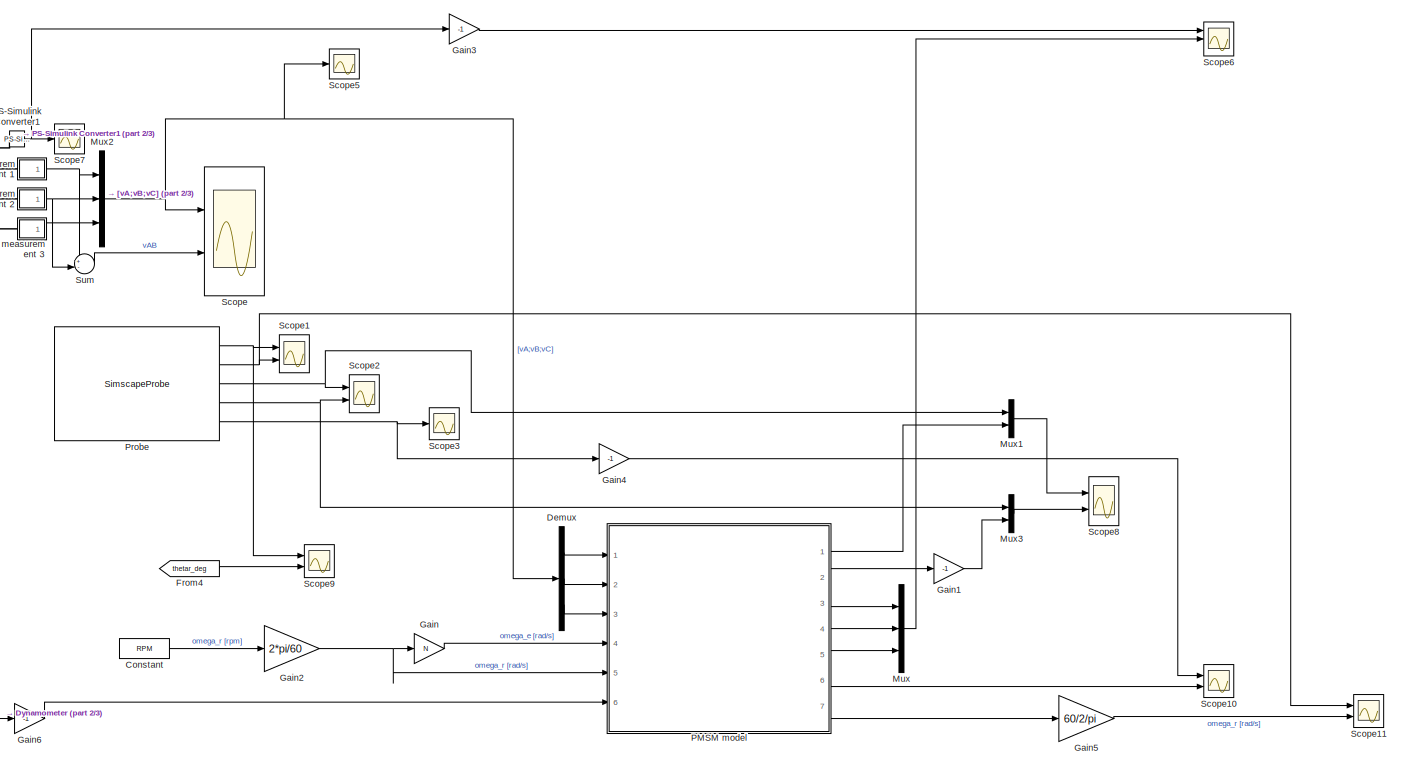
[diagram: root canvas - part 1/3, central region]
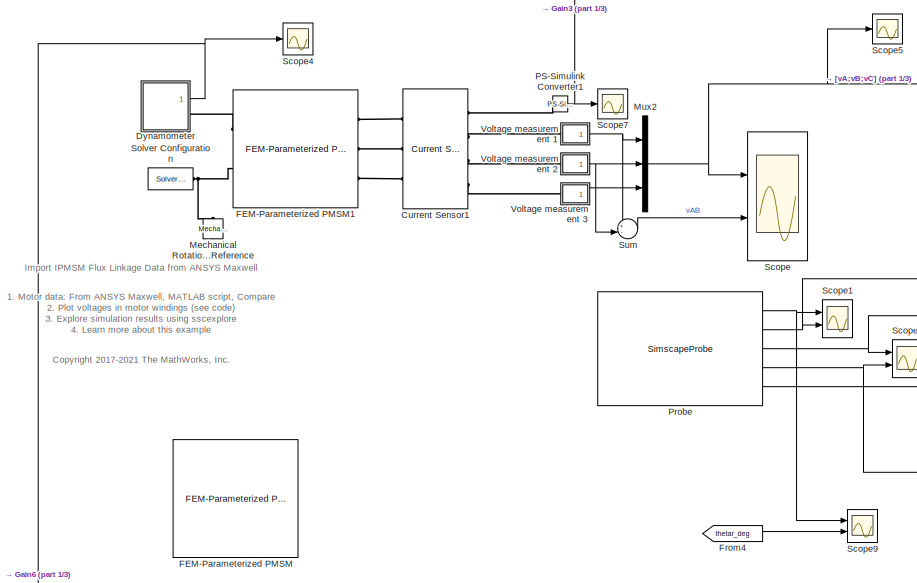
[diagram: root canvas - part 2/3, top left region]
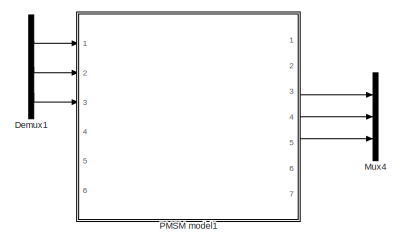
[diagram: root canvas - part 3/3, bottom center region]
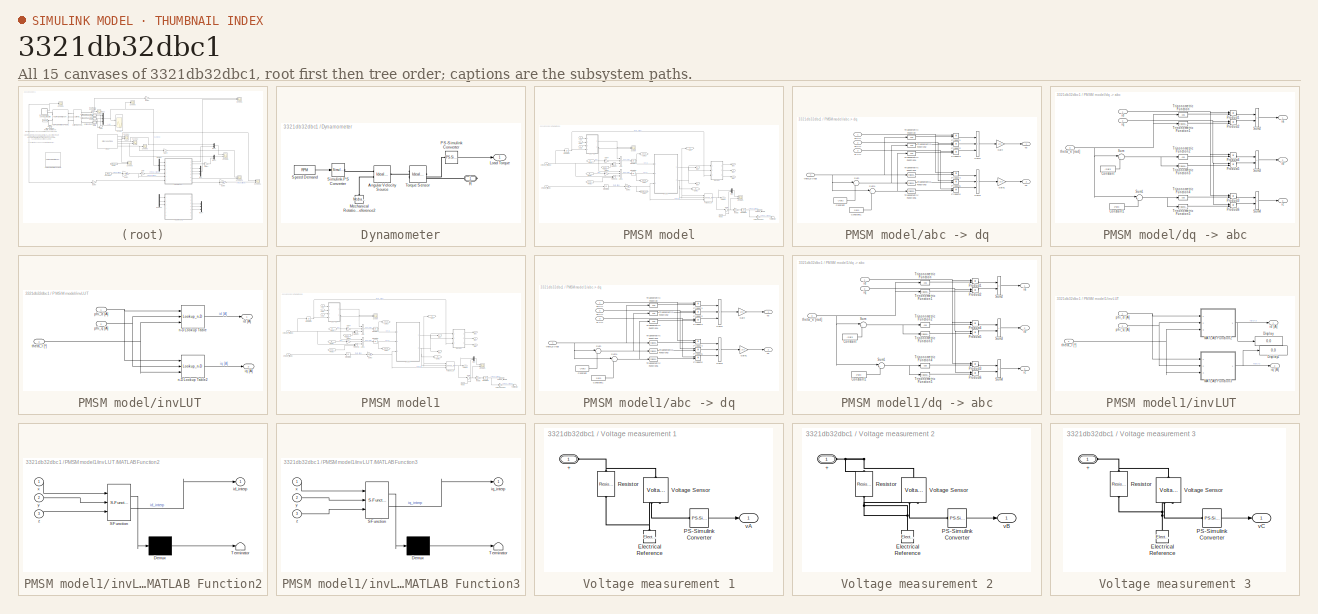
[diagram: thumbnail index - all 15 canvases of the model, root first then tree order]
MODEL slx_3321db32dbc1
KIND model
CONFIG AbsTol = 1e-3
CONFIG EnableMultiTasking = off
CONFIG FixedStep = Ts
CONFIG MaxStep = auto
CONFIG MinStep = auto
CONFIG RelTol = 1e-3
CONFIG SampleTimeConstraint = Unconstrained
CONFIG SolverName = FixedStepAuto
CONFIG StartTime = 0.0
CONFIG StopFcn = ee_addSimlogTimeStamp(bdroot)
CONFIG StopTime = tsim
BLOCK [Constant] Constant
  Value = RPM
BLOCK [Reference] Current Sensor1  REF=ee_lib/Sensors &
Transducers/Current Sensor
(Three-Phase)
  Ports = [0, 0, 0, 0, 0, 3, 4]
  SourceBlock = ee_lib/Sensors &\nTransducers/Current Sensor\n(Three-Phase)
  SourceProductBaseCode = PS
  SourceType = Current Sensor\n(Three-Phase)
BLOCK [Demux] Demux
  Outputs = 3
  Ports = [1, 3]
BLOCK [Demux] Demux1
  Commented = on
  Outputs = 3
  Ports = [1, 3]
BLOCK [SubSystem] Dynamometer
  Ports = [0, 1, 0, 0, 0, 0, 1]
  RequestExecContextInheritance = off
BLOCK [Reference] Dynamometer/Angular Velocity Source  REF=fl_lib/Mechanical/Mechanical Sources/Ideal Angular
Velocity Source
  Ports = [0, 0, 0, 0, 0, 1, 2]
  SourceBlock = fl_lib/Mechanical/Mechanical Sources/Ideal Angular\nVelocity Source
  SourceProductBaseCode = SS
  SourceType = Ideal Angular\nVelocity Source
BLOCK [Outport] Dynamometer/Load Torque
BLOCK [Reference] Dynamometer/Mechanical Rotational Reference2  REF=fl_lib/Mechanical/Rotational Elements/Mechanical
Rotational Reference
  NameLocation = right
  Ports = [0, 0, 0, 0, 0, 1]
  SourceBlock = fl_lib/Mechanical/Rotational Elements/Mechanical\nRotational Reference
  SourceProductBaseCode = SS
  SourceType = Mechanical\nRotational Reference
BLOCK [Reference] Dynamometer/PS-Simulink Converter  REF=nesl_utility/PS-Simulink
Converter
  Ports = [0, 1, 0, 0, 0, 1]
  SourceBlock = nesl_utility/PS-Simulink\nConverter
  SourceProductBaseCode = PW,SS
  SourceType = PS-Simulink\nConverter
BLOCK [PMIOPort] Dynamometer/R
  Side = Right
BLOCK [Reference] Dynamometer/Simulink-PS Converter  REF=nesl_utility/Simulink-PS
Converter
  NameLocation = top
  Ports = [1, 0, 0, 0, 0, 0, 1]
  SourceBlock = nesl_utility/Simulink-PS\nConverter
  SourceProductBaseCode = PW,SS
  SourceType = Simulink-PS\nConverter
BLOCK [Constant] Dynamometer/Speed Demand
  Value = RPM
BLOCK [Reference] Dynamometer/Torque Sensor  REF=fl_lib/Mechanical/Mechanical Sensors/Ideal Torque Sensor
  Ports = [0, 0, 0, 0, 0, 1, 2]
  SourceBlock = fl_lib/Mechanical/Mechanical Sensors/Ideal Torque Sensor
  SourceProductBaseCode = SS
  SourceType = Ideal Torque Sensor
BLOCK [Reference] FEM-Parameterized PMSM  REF=ee_lib/Electromechanical/Permanent Magnet/FEM-Parameterized
PMSM
  Commented = on
  Ports = [0, 0, 0, 0, 0, 4, 2]
  SourceBlock = ee_lib/Electromechanical/Permanent Magnet/FEM-Parameterized\nPMSM
  SourceProductBaseCode = PS
  SourceType = FEM-Parameterized\nPMSM
BLOCK [Reference] FEM-Parameterized PMSM1  REF=ee_lib/Electromechanical/Permanent Magnet/FEM-Parameterized
PMSM
  Ports = [0, 0, 0, 0, 0, 3, 2]
  SourceBlock = ee_lib/Electromechanical/Permanent Magnet/FEM-Parameterized\nPMSM
  SourceProductBaseCode = PS
  SourceType = FEM-Parameterized\nPMSM
BLOCK [From] From4
  GotoTag = thetar_deg
  TagVisibility = global
BLOCK [Gain] Gain
  Gain = N
BLOCK [Gain] Gain1
  Gain = -1
BLOCK [Gain] Gain2
  Gain = 2*pi/60
BLOCK [Gain] Gain3
  Gain = -1
BLOCK [Gain] Gain4
  Gain = -1
BLOCK [Gain] Gain5
  Gain = 60/2/pi
BLOCK [Gain] Gain6
  Gain = -1
BLOCK [Reference] Mechanical Rotational Reference  REF=fl_lib/Mechanical/Rotational Elements/Mechanical
Rotational Reference
  NameLocation = right
  Ports = [0, 0, 0, 0, 0, 1]
  SourceBlock = fl_lib/Mechanical/Rotational Elements/Mechanical\nRotational Reference
  SourceProductBaseCode = SS
  SourceType = Mechanical\nRotational Reference
BLOCK [Mux] Mux
  DisplayOption = bar
  Inputs = 3
  Ports = [3, 1]
BLOCK [Mux] Mux1
  DisplayOption = bar
  Inputs = 2
  Ports = [2, 1]
BLOCK [Mux] Mux2
  DisplayOption = bar
  Inputs = 3
  Ports = [3, 1]
BLOCK [Mux] Mux3
  DisplayOption = bar
  Inputs = 2
  Ports = [2, 1]
BLOCK [Mux] Mux4
  Commented = on
  DisplayOption = bar
  Inputs = 3
  Ports = [3, 1]
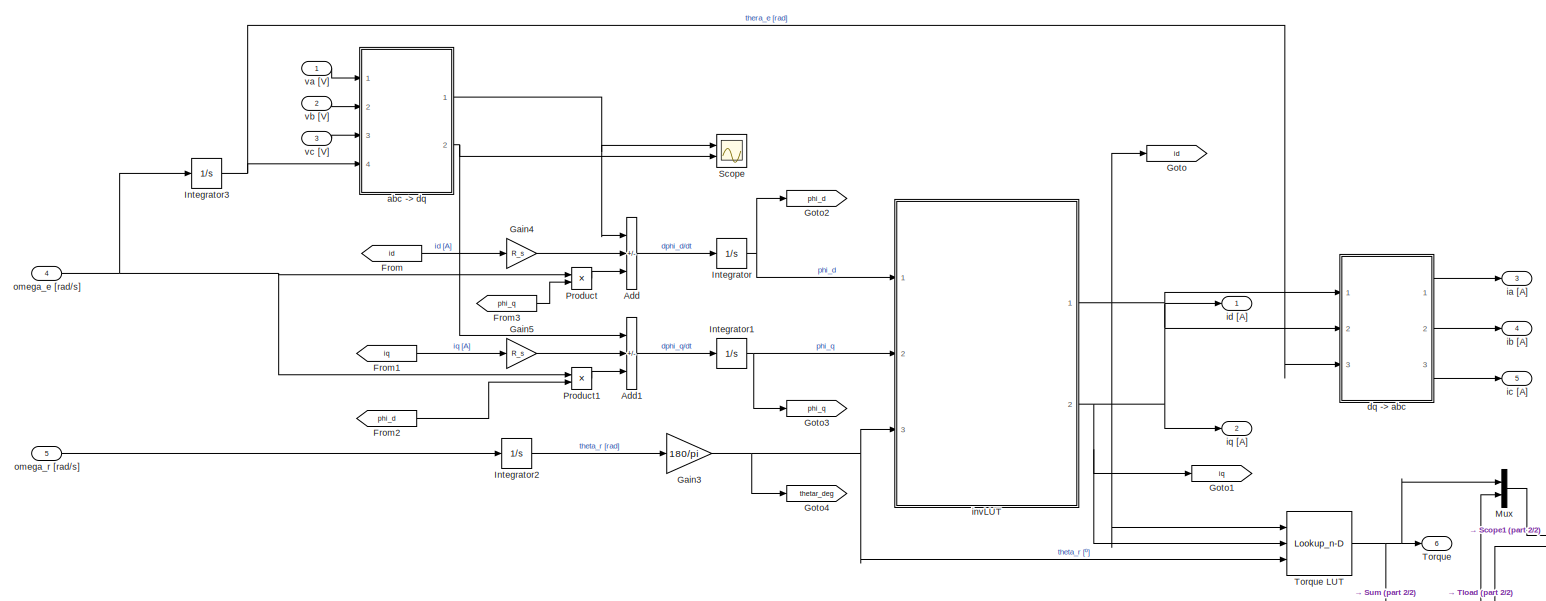
[diagram: PMSM model - part 1/2, most of the canvas]
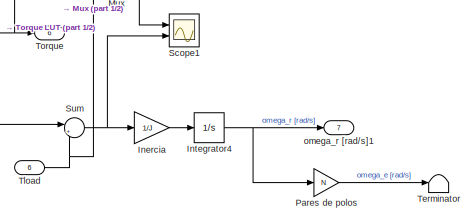
[diagram: PMSM model - part 2/2, bottom right region]
BLOCK [SubSystem] PMSM model
  Ports = [6, 7]
  RequestExecContextInheritance = off
BLOCK [Sum] PMSM model/Add
  IconShape = rectangular
  Inputs = +--
  Ports = [3, 1]
BLOCK [Sum] PMSM model/Add1
  IconShape = rectangular
  Inputs = +-+
  Ports = [3, 1]
BLOCK [From] PMSM model/From
  GotoTag = id
BLOCK [From] PMSM model/From1
  GotoTag = iq
BLOCK [From] PMSM model/From2
  GotoTag = phi_d
BLOCK [From] PMSM model/From3
  GotoTag = phi_q
BLOCK [Gain] PMSM model/Gain3
  Gain = 180/pi
BLOCK [Gain] PMSM model/Gain4
  Gain = R_s
BLOCK [Gain] PMSM model/Gain5
  Gain = R_s
BLOCK [Goto] PMSM model/Goto
  GotoTag = id
BLOCK [Goto] PMSM model/Goto1
  GotoTag = iq
BLOCK [Goto] PMSM model/Goto2
  GotoTag = phi_d
BLOCK [Goto] PMSM model/Goto3
  GotoTag = phi_q
BLOCK [Goto] PMSM model/Goto4
  GotoTag = thetar_deg
  TagVisibility = global
BLOCK [Gain] PMSM model/Inercia
  Gain = 1/J
BLOCK [Integrator] PMSM model/Integrator
  InitialCondition = -0.2
  Ports = [1, 1]
BLOCK [Integrator] PMSM model/Integrator1
  Ports = [1, 1]
BLOCK [Integrator] PMSM model/Integrator2
  Ports = [1, 1]
  WrapState = on
  WrappedStateLowerValue = 0
  WrappedStateUpperValue = 2*pi/3/N
BLOCK [Integrator] PMSM model/Integrator3
  Ports = [1, 1]
BLOCK [Integrator] PMSM model/Integrator4
  InitialCondition = RPM*2*pi/60
  Ports = [1, 1]
BLOCK [Mux] PMSM model/Mux
  DisplayOption = bar
  Inputs = 2
  Ports = [2, 1]
BLOCK [Gain] PMSM model/Pares de polos
  Gain = N
BLOCK [Product] PMSM model/Product
  Ports = [2, 1]
BLOCK [Product] PMSM model/Product1
  Ports = [2, 1]
BLOCK [Scope] PMSM model/Scope
  Floating = off
  NumInputPorts = 2
  Ports = [2]
  ScopeSpecificationString = Simulink.scopes.TimeScopeBlockCfg('CurrentConfiguration', extmgr.ConfigurationSet(extmgr.Configuration('Core','General UI',true),extmgr.Configuration('Core','Source UI',true),extmgr.Configuration('Sources','WiredSimulink',true,'DataLoggingVariableName','ScopeData4'),extmgr.Configuration('Visuals','Time Domain',true,'SerializedDisplays',{struct('MinYLimReal','337.63364','MaxYLimReal','436.71881','Y...<+2089ch>
BLOCK [Scope] PMSM model/Scope1
  Floating = off
  NumInputPorts = 2
  Ports = [2]
  ScopeSpecificationString = Simulink.scopes.TimeScopeBlockCfg('CurrentConfiguration', extmgr.ConfigurationSet(extmgr.Configuration('Core','General UI',true),extmgr.Configuration('Core','Source UI',true),extmgr.Configuration('Sources','WiredSimulink',true,'DataLoggingVariableName','ScopeData1'),extmgr.Configuration('Visuals','Time Domain',true,'SerializedDisplays',{struct('MinYLimReal','-225.63211','MaxYLimReal','485.71628','...<+2404ch>
BLOCK [Sum] PMSM model/Sum
  Inputs = |+-
  Ports = [2, 1]
BLOCK [Terminator] PMSM model/Terminator
BLOCK [Inport] PMSM model/Tload
  Port = 6
BLOCK [Outport] PMSM model/Torque
  Port = 6
BLOCK [Lookup_n-D] PMSM model/Torque LUT
  BreakpointsForDimension1 = idVec
  BreakpointsForDimension2 = iqVec
  BreakpointsForDimension3 = angleVec
  InputPortMap = u0,u1,u2
  InternalRulePriority = Speed
  LookupTableObject = iD
  NumberOfTableDimensions = 3
  Ports = [3, 1]
  RndMeth = Simplest
  Table = torque
BLOCK [SubSystem] PMSM model/abc -> dq
  Ports = [4, 2]
  RequestExecContextInheritance = off
BLOCK [Constant] PMSM model/abc -> dq/Constant
  Value = -2*pi/3
BLOCK [Constant] PMSM model/abc -> dq/Constant1
  Value = 2*pi/3
BLOCK [Gain] PMSM model/abc -> dq/Gain
  Gain = 2/3
BLOCK [Gain] PMSM model/abc -> dq/Gain1
  Gain = 2/3
BLOCK [Product] PMSM model/abc -> dq/Product1
  Ports = [2, 1]
  RndMeth = Zero
BLOCK [Product] PMSM model/abc -> dq/Product2
  Ports = [2, 1]
  RndMeth = Zero
BLOCK [Product] PMSM model/abc -> dq/Product3
  Ports = [2, 1]
  RndMeth = Zero
BLOCK [Product] PMSM model/abc -> dq/Product4
  Ports = [2, 1]
  RndMeth = Zero
BLOCK [Product] PMSM model/abc -> dq/Product5
  Ports = [2, 1]
  RndMeth = Zero
BLOCK [Product] PMSM model/abc -> dq/Product6
  Ports = [2, 1]
  RndMeth = Zero
BLOCK [Sum] PMSM model/abc -> dq/Sum
  Inputs = |++
  Ports = [2, 1]
BLOCK [Sum] PMSM model/abc -> dq/Sum1
  Inputs = |++
  Ports = [2, 1]
BLOCK [Sum] PMSM model/abc -> dq/Sum2
  IconShape = rectangular
  Inputs = +++
  Ports = [3, 1]
BLOCK [Sum] PMSM model/abc -> dq/Sum3
  IconShape = rectangular
  Inputs = +++
  Ports = [3, 1]
BLOCK [Trigonometry] PMSM model/abc -> dq/Trigonometric Function
  Operator = cos
  Ports = [1, 1]
BLOCK [Trigonometry] PMSM model/abc -> dq/Trigonometric Function1
  Ports = [1, 1]
BLOCK [Trigonometry] PMSM model/abc -> dq/Trigonometric Function2
  Operator = cos
  Ports = [1, 1]
BLOCK [Trigonometry] PMSM model/abc -> dq/Trigonometric Function3
  Ports = [1, 1]
BLOCK [Trigonometry] PMSM model/abc -> dq/Trigonometric Function4
  Operator = cos
  Ports = [1, 1]
BLOCK [Trigonometry] PMSM model/abc -> dq/Trigonometric Function5
  Ports = [1, 1]
BLOCK [Inport] PMSM model/abc -> dq/theta_e [rad]
  Port = 4
BLOCK [Inport] PMSM model/abc -> dq/va [V]
BLOCK [Inport] PMSM model/abc -> dq/vb [V]
  Port = 2
BLOCK [Inport] PMSM model/abc -> dq/vc [V]
  Port = 3
BLOCK [Outport] PMSM model/abc -> dq/vd
BLOCK [Outport] PMSM model/abc -> dq/vq
  Port = 2
BLOCK [SubSystem] PMSM model/dq -> abc
  Ports = [3, 3]
  RequestExecContextInheritance = off
BLOCK [Constant] PMSM model/dq -> abc/Constant
  Value = -2*pi/3
BLOCK [Constant] PMSM model/dq -> abc/Constant1
  Value = 2*pi/3
BLOCK [Product] PMSM model/dq -> abc/Product1
  Ports = [2, 1]
  RndMeth = Zero
BLOCK [Product] PMSM model/dq -> abc/Product2
  Ports = [2, 1]
  RndMeth = Zero
BLOCK [Product] PMSM model/dq -> abc/Product3
  Ports = [2, 1]
  RndMeth = Zero
BLOCK [Product] PMSM model/dq -> abc/Product4
  Ports = [2, 1]
  RndMeth = Zero
BLOCK [Product] PMSM model/dq -> abc/Product5
  Ports = [2, 1]
  RndMeth = Zero
BLOCK [Product] PMSM model/dq -> abc/Product6
  Ports = [2, 1]
  RndMeth = Zero
BLOCK [Sum] PMSM model/dq -> abc/Sum
  Inputs = |++
  Ports = [2, 1]
BLOCK [Sum] PMSM model/dq -> abc/Sum1
  Inputs = |++
  Ports = [2, 1]
BLOCK [Sum] PMSM model/dq -> abc/Sum2
  IconShape = rectangular
  Ports = [2, 1]
BLOCK [Sum] PMSM model/dq -> abc/Sum3
  IconShape = rectangular
  Ports = [2, 1]
BLOCK [Sum] PMSM model/dq -> abc/Sum4
  IconShape = rectangular
  Ports = [2, 1]
BLOCK [Trigonometry] PMSM model/dq -> abc/Trigonometric Function
  Operator = cos
  Ports = [1, 1]
BLOCK [Trigonometry] PMSM model/dq -> abc/Trigonometric Function1
  Ports = [1, 1]
BLOCK [Trigonometry] PMSM model/dq -> abc/Trigonometric Function2
  Operator = cos
  Ports = [1, 1]
BLOCK [Trigonometry] PMSM model/dq -> abc/Trigonometric Function3
  Ports = [1, 1]
BLOCK [Trigonometry] PMSM model/dq -> abc/Trigonometric Function4
  Operator = cos
  Ports = [1, 1]
BLOCK [Trigonometry] PMSM model/dq -> abc/Trigonometric Function5
  Ports = [1, 1]
BLOCK [Outport] PMSM model/dq -> abc/ia
BLOCK [Outport] PMSM model/dq -> abc/ib
  Port = 2
BLOCK [Outport] PMSM model/dq -> abc/ic
  Port = 3
BLOCK [Inport] PMSM model/dq -> abc/id
BLOCK [Inport] PMSM model/dq -> abc/iq
  Port = 2
BLOCK [Inport] PMSM model/dq -> abc/theta_e [rad]
  Port = 3
BLOCK [Outport] PMSM model/ia [A]
  Port = 3
BLOCK [Outport] PMSM model/ib [A]
  Port = 4
BLOCK [Outport] PMSM model/ic [A]
  Port = 5
BLOCK [Outport] PMSM model/id [A]
BLOCK [SubSystem] PMSM model/invLUT 
  Ports = [3, 2]
  RequestExecContextInheritance = off
BLOCK [Outport] PMSM model/invLUT /id [A]
BLOCK [Outport] PMSM model/invLUT /iq [A]
  Port = 2
BLOCK [Lookup_n-D] PMSM model/invLUT /n-D Lookup Table
  BreakpointsForDimension1 = data.phi_d
  BreakpointsForDimension2 = data.phi_q
  BreakpointsForDimension3 = data.theta
  InputPortMap = u0,u1,u2
  InternalRulePriority = Speed
  LookupTableObject = iD
  NumberOfTableDimensions = 3
  Ports = [3, 1]
  RndMeth = Simplest
  Table = data.i_d
BLOCK [Lookup_n-D] PMSM model/invLUT /n-D Lookup Table2
  BreakpointsForDimension1 = data.phi_d
  BreakpointsForDimension2 = data.phi_q
  BreakpointsForDimension3 = data.theta
  InputPortMap = u0,u1,u2
  InternalRulePriority = Speed
  LookupTableObject = iD
  NumberOfTableDimensions = 3
  Ports = [3, 1]
  RndMeth = Simplest
  Table = data.i_q
BLOCK [Inport] PMSM model/invLUT /phi_d [A]
BLOCK [Inport] PMSM model/invLUT /phi_q [A]
  Port = 2
BLOCK [Inport] PMSM model/invLUT /theta_r [º]
  Port = 3
BLOCK [Outport] PMSM model/iq [A]
  Port = 2
BLOCK [Inport] PMSM model/omega_e [rad//s]
  Port = 4
BLOCK [Inport] PMSM model/omega_r [rad//s]
  Port = 5
BLOCK [Outport] PMSM model/omega_r [rad//s]1
  Port = 7
BLOCK [Inport] PMSM model/va [V]
BLOCK [Inport] PMSM model/vb [V]
  Port = 2
BLOCK [Inport] PMSM model/vc [V]
  Port = 3
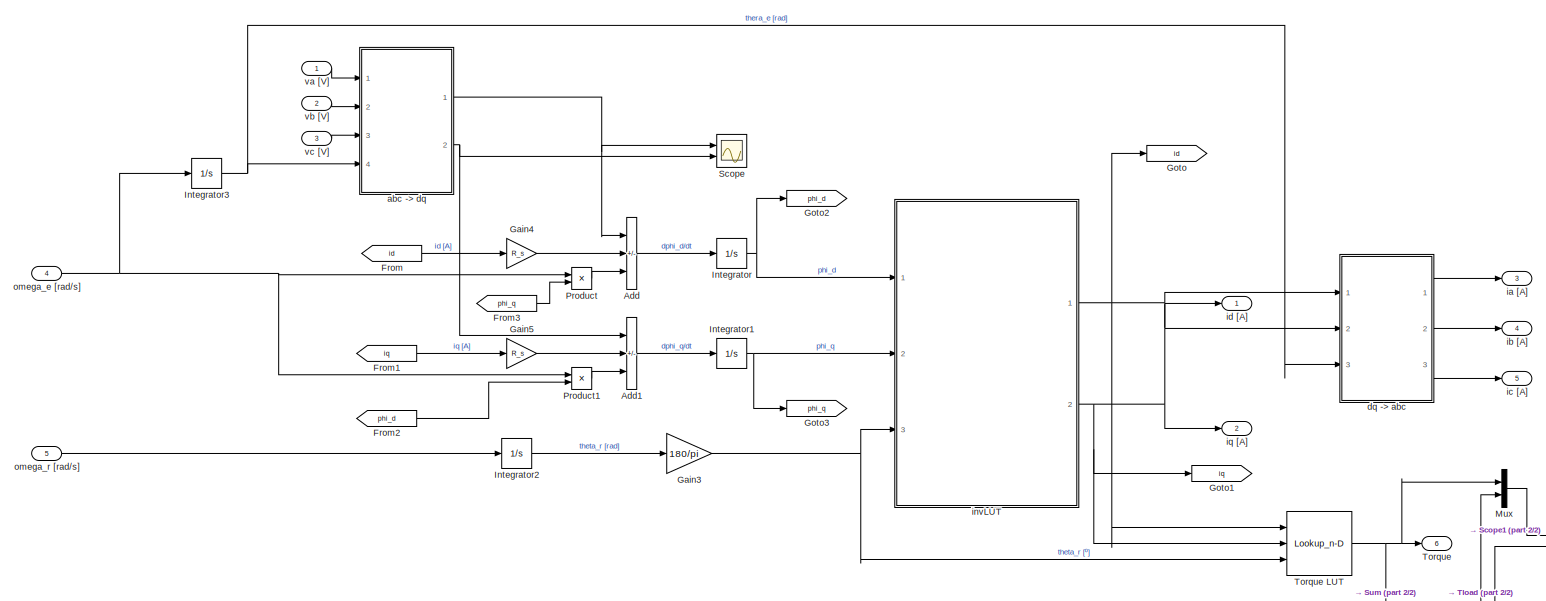
[diagram: PMSM model1 - part 1/2, most of the canvas]
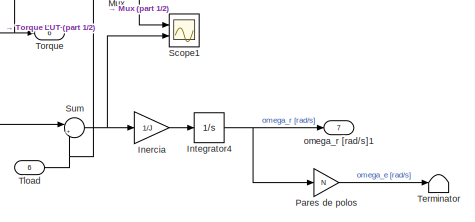
[diagram: PMSM model1 - part 2/2, bottom right region]
BLOCK [SubSystem] PMSM model1
  Commented = on
  Ports = [6, 7]
  RequestExecContextInheritance = off
BLOCK [Sum] PMSM model1/Add
  IconShape = rectangular
  Inputs = +--
  Ports = [3, 1]
BLOCK [Sum] PMSM model1/Add1
  IconShape = rectangular
  Inputs = +-+
  Ports = [3, 1]
BLOCK [From] PMSM model1/From
  GotoTag = id
BLOCK [From] PMSM model1/From1
  GotoTag = iq
BLOCK [From] PMSM model1/From2
  GotoTag = phi_d
BLOCK [From] PMSM model1/From3
  GotoTag = phi_q
BLOCK [Gain] PMSM model1/Gain3
  Gain = 180/pi
BLOCK [Gain] PMSM model1/Gain4
  Gain = R_s
BLOCK [Gain] PMSM model1/Gain5
  Gain = R_s
BLOCK [Goto] PMSM model1/Goto
  GotoTag = id
BLOCK [Goto] PMSM model1/Goto1
  GotoTag = iq
BLOCK [Goto] PMSM model1/Goto2
  GotoTag = phi_d
BLOCK [Goto] PMSM model1/Goto3
  GotoTag = phi_q
BLOCK [Gain] PMSM model1/Inercia
  Gain = 1/J
BLOCK [Integrator] PMSM model1/Integrator
  InitialCondition = -0.2
  Ports = [1, 1]
BLOCK [Integrator] PMSM model1/Integrator1
  InitialCondition = -0.2
  Ports = [1, 1]
BLOCK [Integrator] PMSM model1/Integrator2
  Ports = [1, 1]
  WrapState = on
  WrappedStateLowerValue = 0
  WrappedStateUpperValue = 2*pi/3/N
BLOCK [Integrator] PMSM model1/Integrator3
  Ports = [1, 1]
BLOCK [Integrator] PMSM model1/Integrator4
  InitialCondition = RPM*2*pi/60
  Ports = [1, 1]
BLOCK [Mux] PMSM model1/Mux
  DisplayOption = bar
  Inputs = 2
  Ports = [2, 1]
BLOCK [Gain] PMSM model1/Pares de polos
  Gain = N
BLOCK [Product] PMSM model1/Product
  Ports = [2, 1]
BLOCK [Product] PMSM model1/Product1
  Ports = [2, 1]
BLOCK [Scope] PMSM model1/Scope
  Floating = off
  NumInputPorts = 2
  Ports = [2]
  ScopeSpecificationString = Simulink.scopes.TimeScopeBlockCfg('CurrentConfiguration', extmgr.ConfigurationSet(extmgr.Configuration('Core','General UI',true),extmgr.Configuration('Core','Source UI',true),extmgr.Configuration('Sources','WiredSimulink',true,'DataLoggingVariableName','ScopeData4'),extmgr.Configuration('Visuals','Time Domain',true,'SerializedDisplays',{struct('MinYLimReal','337.63364','MaxYLimReal','436.71881','Y...<+2089ch>
BLOCK [Scope] PMSM model1/Scope1
  Floating = off
  NumInputPorts = 2
  Ports = [2]
  ScopeSpecificationString = Simulink.scopes.TimeScopeBlockCfg('CurrentConfiguration', extmgr.ConfigurationSet(extmgr.Configuration('Core','General UI',true),extmgr.Configuration('Core','Source UI',true),extmgr.Configuration('Sources','WiredSimulink',true,'DataLoggingVariableName','ScopeData1'),extmgr.Configuration('Visuals','Time Domain',true,'SerializedDisplays',{struct('MinYLimReal','-225.63211','MaxYLimReal','485.71628','...<+2404ch>
BLOCK [Sum] PMSM model1/Sum
  Inputs = |+-
  Ports = [2, 1]
BLOCK [Terminator] PMSM model1/Terminator
BLOCK [Inport] PMSM model1/Tload
  Port = 6
BLOCK [Outport] PMSM model1/Torque
  Port = 6
BLOCK [Lookup_n-D] PMSM model1/Torque LUT
  BreakpointsForDimension1 = idVec
  BreakpointsForDimension2 = iqVec
  BreakpointsForDimension3 = angleVec
  InputPortMap = u0,u1,u2
  InternalRulePriority = Speed
  LookupTableObject = iD
  NumberOfTableDimensions = 3
  Ports = [3, 1]
  RndMeth = Simplest
  Table = torque
BLOCK [SubSystem] PMSM model1/abc -> dq
  Ports = [4, 2]
  RequestExecContextInheritance = off
BLOCK [Constant] PMSM model1/abc -> dq/Constant
  Value = -2*pi/3
BLOCK [Constant] PMSM model1/abc -> dq/Constant1
  Value = 2*pi/3
BLOCK [Gain] PMSM model1/abc -> dq/Gain
  Gain = 2/3
BLOCK [Gain] PMSM model1/abc -> dq/Gain1
  Gain = 2/3
BLOCK [Product] PMSM model1/abc -> dq/Product1
  Ports = [2, 1]
  RndMeth = Zero
BLOCK [Product] PMSM model1/abc -> dq/Product2
  Ports = [2, 1]
  RndMeth = Zero
BLOCK [Product] PMSM model1/abc -> dq/Product3
  Ports = [2, 1]
  RndMeth = Zero
BLOCK [Product] PMSM model1/abc -> dq/Product4
  Ports = [2, 1]
  RndMeth = Zero
BLOCK [Product] PMSM model1/abc -> dq/Product5
  Ports = [2, 1]
  RndMeth = Zero
BLOCK [Product] PMSM model1/abc -> dq/Product6
  Ports = [2, 1]
  RndMeth = Zero
BLOCK [Sum] PMSM model1/abc -> dq/Sum
  Inputs = |++
  Ports = [2, 1]
BLOCK [Sum] PMSM model1/abc -> dq/Sum1
  Inputs = |++
  Ports = [2, 1]
BLOCK [Sum] PMSM model1/abc -> dq/Sum2
  IconShape = rectangular
  Inputs = +++
  Ports = [3, 1]
BLOCK [Sum] PMSM model1/abc -> dq/Sum3
  IconShape = rectangular
  Inputs = +++
  Ports = [3, 1]
BLOCK [Trigonometry] PMSM model1/abc -> dq/Trigonometric Function
  Operator = cos
  Ports = [1, 1]
BLOCK [Trigonometry] PMSM model1/abc -> dq/Trigonometric Function1
  Ports = [1, 1]
BLOCK [Trigonometry] PMSM model1/abc -> dq/Trigonometric Function2
  Operator = cos
  Ports = [1, 1]
BLOCK [Trigonometry] PMSM model1/abc -> dq/Trigonometric Function3
  Ports = [1, 1]
BLOCK [Trigonometry] PMSM model1/abc -> dq/Trigonometric Function4
  Operator = cos
  Ports = [1, 1]
BLOCK [Trigonometry] PMSM model1/abc -> dq/Trigonometric Function5
  Ports = [1, 1]
BLOCK [Inport] PMSM model1/abc -> dq/theta_e [rad]
  Port = 4
BLOCK [Inport] PMSM model1/abc -> dq/va [V]
BLOCK [Inport] PMSM model1/abc -> dq/vb [V]
  Port = 2
BLOCK [Inport] PMSM model1/abc -> dq/vc [V]
  Port = 3
BLOCK [Outport] PMSM model1/abc -> dq/vd
BLOCK [Outport] PMSM model1/abc -> dq/vq
  Port = 2
BLOCK [SubSystem] PMSM model1/dq -> abc
  Ports = [3, 3]
  RequestExecContextInheritance = off
BLOCK [Constant] PMSM model1/dq -> abc/Constant
  Value = -2*pi/3
BLOCK [Constant] PMSM model1/dq -> abc/Constant1
  Value = 2*pi/3
BLOCK [Product] PMSM model1/dq -> abc/Product1
  Ports = [2, 1]
  RndMeth = Zero
BLOCK [Product] PMSM model1/dq -> abc/Product2
  Ports = [2, 1]
  RndMeth = Zero
BLOCK [Product] PMSM model1/dq -> abc/Product3
  Ports = [2, 1]
  RndMeth = Zero
BLOCK [Product] PMSM model1/dq -> abc/Product4
  Ports = [2, 1]
  RndMeth = Zero
BLOCK [Product] PMSM model1/dq -> abc/Product5
  Ports = [2, 1]
  RndMeth = Zero
BLOCK [Product] PMSM model1/dq -> abc/Product6
  Ports = [2, 1]
  RndMeth = Zero
BLOCK [Sum] PMSM model1/dq -> abc/Sum
  Inputs = |++
  Ports = [2, 1]
BLOCK [Sum] PMSM model1/dq -> abc/Sum1
  Inputs = |++
  Ports = [2, 1]
BLOCK [Sum] PMSM model1/dq -> abc/Sum2
  IconShape = rectangular
  Ports = [2, 1]
BLOCK [Sum] PMSM model1/dq -> abc/Sum3
  IconShape = rectangular
  Ports = [2, 1]
BLOCK [Sum] PMSM model1/dq -> abc/Sum4
  IconShape = rectangular
  Ports = [2, 1]
BLOCK [Trigonometry] PMSM model1/dq -> abc/Trigonometric Function
  Operator = cos
  Ports = [1, 1]
BLOCK [Trigonometry] PMSM model1/dq -> abc/Trigonometric Function1
  Ports = [1, 1]
BLOCK [Trigonometry] PMSM model1/dq -> abc/Trigonometric Function2
  Operator = cos
  Ports = [1, 1]
BLOCK [Trigonometry] PMSM model1/dq -> abc/Trigonometric Function3
  Ports = [1, 1]
BLOCK [Trigonometry] PMSM model1/dq -> abc/Trigonometric Function4
  Operator = cos
  Ports = [1, 1]
BLOCK [Trigonometry] PMSM model1/dq -> abc/Trigonometric Function5
  Ports = [1, 1]
BLOCK [Outport] PMSM model1/dq -> abc/ia
BLOCK [Outport] PMSM model1/dq -> abc/ib
  Port = 2
BLOCK [Outport] PMSM model1/dq -> abc/ic
  Port = 3
BLOCK [Inport] PMSM model1/dq -> abc/id
BLOCK [Inport] PMSM model1/dq -> abc/iq
  Port = 2
BLOCK [Inport] PMSM model1/dq -> abc/theta_e [rad]
  Port = 3
BLOCK [Outport] PMSM model1/ia [A]
  Port = 3
BLOCK [Outport] PMSM model1/ib [A]
  Port = 4
BLOCK [Outport] PMSM model1/ic [A]
  Port = 5
BLOCK [Outport] PMSM model1/id [A]
BLOCK [SubSystem] PMSM model1/invLUT 
  Ports = [3, 2]
  RequestExecContextInheritance = off
BLOCK [Display] PMSM model1/invLUT /Display
  Decimation = 1
  Ports = [1]
BLOCK [Display] PMSM model1/invLUT /Display1
  Decimation = 1
  Ports = [1]
BLOCK [SubSystem] PMSM model1/invLUT /MATLAB Function2
  ErrorFcn = Stateflow.Translate.translate
  PermitHierarchicalResolution = ExplicitOnly
  Ports = [3, 1]
  RequestExecContextInheritance = off
  SFBlockType = MATLAB Function
  TreatAsAtomicUnit = on
BLOCK [Demux] PMSM model1/invLUT /MATLAB Function2/ Demux 
  Outputs = 1
  Ports = [1, 1]
BLOCK [S-Function] PMSM model1/invLUT /MATLAB Function2/ SFunction 
  EnableBusSupport = on
  FunctionName = sf_sfun
  Parameters = data
  PortCounts = [3 2]
  Ports = [3, 2]
  SFcnIsStateOwnerBlock = off
  SFunctionDeploymentMode = off
  Tag = Stateflow S-Function 3
BLOCK [Terminator] PMSM model1/invLUT /MATLAB Function2/ Terminator 
BLOCK [Outport] PMSM model1/invLUT /MATLAB Function2/id_interp
BLOCK [Inport] PMSM model1/invLUT /MATLAB Function2/x
BLOCK [Inport] PMSM model1/invLUT /MATLAB Function2/y
  Port = 2
BLOCK [Inport] PMSM model1/invLUT /MATLAB Function2/z
  Port = 3
BLOCK [SubSystem] PMSM model1/invLUT /MATLAB Function3
  ErrorFcn = Stateflow.Translate.translate
  PermitHierarchicalResolution = ExplicitOnly
  Ports = [3, 1]
  RequestExecContextInheritance = off
  SFBlockType = MATLAB Function
  TreatAsAtomicUnit = on
BLOCK [Demux] PMSM model1/invLUT /MATLAB Function3/ Demux 
  Outputs = 1
  Ports = [1, 1]
BLOCK [S-Function] PMSM model1/invLUT /MATLAB Function3/ SFunction 
  EnableBusSupport = on
  FunctionName = sf_sfun
  Parameters = data
  PortCounts = [3 2]
  Ports = [3, 2]
  SFcnIsStateOwnerBlock = off
  SFunctionDeploymentMode = off
  Tag = Stateflow S-Function 4
BLOCK [Terminator] PMSM model1/invLUT /MATLAB Function3/ Terminator 
BLOCK [Outport] PMSM model1/invLUT /MATLAB Function3/iq_interp
BLOCK [Inport] PMSM model1/invLUT /MATLAB Function3/x
BLOCK [Inport] PMSM model1/invLUT /MATLAB Function3/y
  Port = 2
BLOCK [Inport] PMSM model1/invLUT /MATLAB Function3/z
  Port = 3
BLOCK [Outport] PMSM model1/invLUT /id [A]
BLOCK [Outport] PMSM model1/invLUT /iq [A]
  Port = 2
BLOCK [Inport] PMSM model1/invLUT /phi_d [A]
BLOCK [Inport] PMSM model1/invLUT /phi_q [A]
  Port = 2
BLOCK [Inport] PMSM model1/invLUT /theta_r [º]
  Port = 3
BLOCK [Outport] PMSM model1/iq [A]
  Port = 2
BLOCK [Inport] PMSM model1/omega_e [rad//s]
  Port = 4
BLOCK [Inport] PMSM model1/omega_r [rad//s]
  Port = 5
BLOCK [Outport] PMSM model1/omega_r [rad//s]1
  Port = 7
BLOCK [Inport] PMSM model1/va [V]
BLOCK [Inport] PMSM model1/vb [V]
  Port = 2
BLOCK [Inport] PMSM model1/vc [V]
  Port = 3
BLOCK [Reference] PS-Simulink Converter1  REF=nesl_utility/PS-Simulink
Converter
  Ports = [0, 1, 0, 0, 0, 1]
  SourceBlock = nesl_utility/PS-Simulink\nConverter
  SourceProductBaseCode = PW,SS
  SourceType = PS-Simulink\nConverter
BLOCK [SimscapeProbe] Probe
  BoundBlock = 146
  Ports = [0, 5]
  Variables = {angular_position, angular_velocity, i_d, i_q, torque}
BLOCK [Scope] Scope
  Floating = off
  NumInputPorts = 2
  Ports = [2]
  ScopeSpecificationString = Simulink.scopes.TimeScopeBlockCfg('CurrentConfiguration', extmgr.ConfigurationSet(extmgr.Configuration('Core','General UI',true),extmgr.Configuration('Core','Source UI',true),extmgr.Configuration('Sources','WiredSimulink',true),extmgr.Configuration('Visuals','Time Domain',true,'SerializedDisplays',{struct('MinYLimReal','-659.81823','MaxYLimReal','644.37741','YLabelReal','','MinYLimMag',' 0.00000',...<+2063ch>
BLOCK [Scope] Scope1
  Floating = off
  NumInputPorts = 2
  Ports = [2]
  ScopeSpecificationString = Simulink.scopes.TimeScopeBlockCfg('CurrentConfiguration', extmgr.ConfigurationSet(extmgr.Configuration('Core','General UI',true),extmgr.Configuration('Core','Source UI',true),extmgr.Configuration('Sources','WiredSimulink',true,'DataLoggingVariableName','ScopeData1'),extmgr.Configuration('Visuals','Time Domain',true,'SerializedDisplays',{struct('MinYLimReal','-810.00000','MaxYLimReal','7290.00000',...<+2101ch>
BLOCK [Scope] Scope10
  Floating = off
  NumInputPorts = 2
  Ports = [2]
  ScopeSpecificationString = Simulink.scopes.TimeScopeBlockCfg('CurrentConfiguration', extmgr.ConfigurationSet(extmgr.Configuration('Core','General UI',true),extmgr.Configuration('Core','Source UI',true),extmgr.Configuration('Sources','WiredSimulink',true,'DataLoggingVariableName','ScopeData1'),extmgr.Configuration('Visuals','Time Domain',true,'SerializedDisplays',{struct('MinYLimReal','-487.91352','MaxYLimReal','300.21714','...<+1645ch>
BLOCK [Scope] Scope11
  Floating = off
  NumInputPorts = 2
  Ports = [2]
  ScopeSpecificationString = Simulink.scopes.TimeScopeBlockCfg('CurrentConfiguration', extmgr.ConfigurationSet(extmgr.Configuration('Core','General UI',true),extmgr.Configuration('Core','Source UI',true),extmgr.Configuration('Sources','WiredSimulink',true,'DataLoggingVariableName','ScopeData1'),extmgr.Configuration('Visuals','Time Domain',true,'SerializedDisplays',{struct('MinYLimReal','7114.7089','MaxYLimReal','7289.82732','...<+1519ch>
BLOCK [Scope] Scope2
  Floating = off
  NumInputPorts = 2
  Ports = [2]
  ScopeSpecificationString = Simulink.scopes.TimeScopeBlockCfg('CurrentConfiguration', extmgr.ConfigurationSet(extmgr.Configuration('Core','General UI',true),extmgr.Configuration('Core','Source UI',true),extmgr.Configuration('Sources','WiredSimulink',true,'DataLoggingVariableName','ScopeData2'),extmgr.Configuration('Visuals','Time Domain',true,'SerializedDisplays',{struct('MinYLimReal','-27.21154','MaxYLimReal','-19.36066','Y...<+2086ch>
BLOCK [Scope] Scope3
  Floating = off
  NumInputPorts = 1
  Ports = [1]
  ScopeSpecificationString = Simulink.scopes.TimeScopeBlockCfg('CurrentConfiguration', extmgr.ConfigurationSet(extmgr.Configuration('Core','General UI',true),extmgr.Configuration('Core','Source UI',true),extmgr.Configuration('Sources','WiredSimulink',true,'DataLoggingVariableName','ScopeData3'),extmgr.Configuration('Visuals','Time Domain',true,'SerializedDisplays',{struct('MinYLimReal','39.95524','MaxYLimReal','64.26981','YLa...<+1443ch>
BLOCK [Scope] Scope4
  Floating = off
  NumInputPorts = 1
  Ports = [1]
  ScopeSpecificationString = Simulink.scopes.TimeScopeBlockCfg('CurrentConfiguration', extmgr.ConfigurationSet(extmgr.Configuration('Core','General UI',true),extmgr.Configuration('Core','Source UI',true),extmgr.Configuration('Sources','WiredSimulink',true,'DataLoggingVariableName','load_torque','DataLogging',true,'DataLoggingSaveFormat','StructureWithTime'),extmgr.Configuration('Visuals','Time Domain',true,'SerializedDisplays...<+1511ch>
BLOCK [Scope] Scope5
  Floating = off
  NumInputPorts = 1
  Ports = [1]
  ScopeSpecificationString = Simulink.scopes.TimeScopeBlockCfg('CurrentConfiguration', extmgr.ConfigurationSet(extmgr.Configuration('Core','General UI',true),extmgr.Configuration('Core','Source UI',true),extmgr.Configuration('Sources','WiredSimulink',true,'DataLoggingVariableName','phase_volt','DataLogging',true,'DataLoggingSaveFormat','StructureWithTime'),extmgr.Configuration('Visuals','Time Domain',true,'SerializedDisplays'...<+1980ch>
BLOCK [Scope] Scope6
  Floating = off
  NumInputPorts = 3
  Ports = [3]
  ScopeSpecificationString = Simulink.scopes.TimeScopeBlockCfg('CurrentConfiguration', extmgr.ConfigurationSet(extmgr.Configuration('Core','General UI',true),extmgr.Configuration('Core','Source UI',true),extmgr.Configuration('Sources','WiredSimulink',true,'DataLoggingVariableName','ScopeData1'),extmgr.Configuration('Visuals','Time Domain',true,'SerializedDisplays',{struct('MinYLimReal','-66.92077','MaxYLimReal','66.71547','YL...<+1695ch>
BLOCK [Scope] Scope7
  Floating = off
  NumInputPorts = 1
  Ports = [1]
  ScopeSpecificationString = Simulink.scopes.TimeScopeBlockCfg('CurrentConfiguration', extmgr.ConfigurationSet(extmgr.Configuration('Core','General UI',true),extmgr.Configuration('Core','Source UI',true),extmgr.Configuration('Sources','WiredSimulink',true,'DataLoggingVariableName','phase_curr','DataLogging',true,'DataLoggingSaveFormat','StructureWithTime'),extmgr.Configuration('Visuals','Time Domain',true,'SerializedDisplays'...<+2032ch>
BLOCK [Scope] Scope8
  Floating = off
  NumInputPorts = 2
  Ports = [2]
  ScopeSpecificationString = Simulink.scopes.TimeScopeBlockCfg('CurrentConfiguration', extmgr.ConfigurationSet(extmgr.Configuration('Core','General UI',true),extmgr.Configuration('Core','Source UI',true),extmgr.Configuration('Sources','WiredSimulink',true,'DataLoggingVariableName','ScopeData2'),extmgr.Configuration('Visuals','Time Domain',true,'SerializedDisplays',{struct('MinYLimReal','-40.25894','MaxYLimReal','-32.31886','Y...<+2098ch>
BLOCK [Scope] Scope9
  Floating = off
  NumInputPorts = 2
  Ports = [2]
  ScopeSpecificationString = Simulink.scopes.TimeScopeBlockCfg('CurrentConfiguration', extmgr.ConfigurationSet(extmgr.Configuration('Core','General UI',true),extmgr.Configuration('Core','Source UI',true),extmgr.Configuration('Sources','WiredSimulink',true,'DataLoggingVariableName','ScopeData3'),extmgr.Configuration('Visuals','Time Domain',true,'SerializedDisplays',{struct('MinYLimReal','-192.24004','MaxYLimReal','246.02741','...<+1513ch>
BLOCK [Reference] Solver Configuration  REF=nesl_utility/Solver
Configuration
  NameLocation = top
  Ports = [0, 0, 0, 0, 0, 0, 1]
  SourceBlock = nesl_utility/Solver\nConfiguration
  SourceProductBaseCode = PW,SS
  SourceType = Solver\nConfiguration
BLOCK [Sum] Sum
  Inputs = +-|
  Ports = [2, 1]
BLOCK [SubSystem] Voltage measurement 1
  NameLocation = top
  Ports = [0, 1, 0, 0, 0, 1]
  RequestExecContextInheritance = off
BLOCK [PMIOPort] Voltage measurement 1/+
  Side = Left
BLOCK [Reference] Voltage measurement 1/Electrical Reference  REF=fl_lib/Electrical/Electrical Elements/Electrical Reference
  NameLocation = right
  Ports = [0, 0, 0, 0, 0, 1]
  SourceBlock = fl_lib/Electrical/Electrical Elements/Electrical Reference
  SourceProductBaseCode = SS
  SourceType = Electrical Reference
BLOCK [Reference] Voltage measurement 1/PS-Simulink Converter  REF=nesl_utility/PS-Simulink
Converter
  Ports = [0, 1, 0, 0, 0, 1]
  SourceBlock = nesl_utility/PS-Simulink\nConverter
  SourceProductBaseCode = PW,SS
  SourceType = PS-Simulink\nConverter
BLOCK [Reference] Voltage measurement 1/Resistor  REF=fl_lib/Electrical/Electrical Elements/Resistor
  NameLocation = left
  Ports = [0, 0, 0, 0, 0, 1, 1]
  SourceBlock = fl_lib/Electrical/Electrical Elements/Resistor
  SourceProductBaseCode = SS
  SourceType = Resistor
BLOCK [Reference] Voltage measurement 1/Voltage Sensor  REF=fl_lib/Electrical/Electrical Sensors/Voltage Sensor
  NameLocation = left
  Ports = [0, 0, 0, 0, 0, 1, 2]
  SourceBlock = fl_lib/Electrical/Electrical Sensors/Voltage Sensor
  SourceProductBaseCode = SS
  SourceType = Voltage Sensor
BLOCK [Outport] Voltage measurement 1/vA
  VectorParamsAs1DForOutWhenUnconnected = off
BLOCK [SubSystem] Voltage measurement 2
  NameLocation = top
  Ports = [0, 1, 0, 0, 0, 1]
  RequestExecContextInheritance = off
BLOCK [PMIOPort] Voltage measurement 2/+
  Side = Left
BLOCK [Reference] Voltage measurement 2/Electrical Reference  REF=fl_lib/Electrical/Electrical Elements/Electrical Reference
  NameLocation = right
  Ports = [0, 0, 0, 0, 0, 1]
  SourceBlock = fl_lib/Electrical/Electrical Elements/Electrical Reference
  SourceProductBaseCode = SS
  SourceType = Electrical Reference
BLOCK [Reference] Voltage measurement 2/PS-Simulink Converter  REF=nesl_utility/PS-Simulink
Converter
  Ports = [0, 1, 0, 0, 0, 1]
  SourceBlock = nesl_utility/PS-Simulink\nConverter
  SourceProductBaseCode = PW,SS
  SourceType = PS-Simulink\nConverter
BLOCK [Reference] Voltage measurement 2/Resistor  REF=fl_lib/Electrical/Electrical Elements/Resistor
  NameLocation = left
  Ports = [0, 0, 0, 0, 0, 1, 1]
  SourceBlock = fl_lib/Electrical/Electrical Elements/Resistor
  SourceProductBaseCode = SS
  SourceType = Resistor
BLOCK [Reference] Voltage measurement 2/Voltage Sensor  REF=fl_lib/Electrical/Electrical Sensors/Voltage Sensor
  NameLocation = left
  Ports = [0, 0, 0, 0, 0, 1, 2]
  SourceBlock = fl_lib/Electrical/Electrical Sensors/Voltage Sensor
  SourceProductBaseCode = SS
  SourceType = Voltage Sensor
BLOCK [Outport] Voltage measurement 2/vB
  VectorParamsAs1DForOutWhenUnconnected = off
BLOCK [SubSystem] Voltage measurement 3
  NameLocation = top
  Ports = [0, 1, 0, 0, 0, 1]
  RequestExecContextInheritance = off
BLOCK [PMIOPort] Voltage measurement 3/+
  Side = Left
BLOCK [Reference] Voltage measurement 3/Electrical Reference  REF=fl_lib/Electrical/Electrical Elements/Electrical Reference
  NameLocation = right
  Ports = [0, 0, 0, 0, 0, 1]
  SourceBlock = fl_lib/Electrical/Electrical Elements/Electrical Reference
  SourceProductBaseCode = SS
  SourceType = Electrical Reference
BLOCK [Reference] Voltage measurement 3/PS-Simulink Converter  REF=nesl_utility/PS-Simulink
Converter
  Ports = [0, 1, 0, 0, 0, 1]
  SourceBlock = nesl_utility/PS-Simulink\nConverter
  SourceProductBaseCode = PW,SS
  SourceType = PS-Simulink\nConverter
BLOCK [Reference] Voltage measurement 3/Resistor  REF=fl_lib/Electrical/Electrical Elements/Resistor
  NameLocation = left
  Ports = [0, 0, 0, 0, 0, 1, 1]
  SourceBlock = fl_lib/Electrical/Electrical Elements/Resistor
  SourceProductBaseCode = SS
  SourceType = Resistor
BLOCK [Reference] Voltage measurement 3/Voltage Sensor  REF=fl_lib/Electrical/Electrical Sensors/Voltage Sensor
  NameLocation = left
  Ports = [0, 0, 0, 0, 0, 1, 2]
  SourceBlock = fl_lib/Electrical/Electrical Sensors/Voltage Sensor
  SourceProductBaseCode = SS
  SourceType = Voltage Sensor
BLOCK [Outport] Voltage measurement 3/vC
  VectorParamsAs1DForOutWhenUnconnected = off
ANNOTATION (root): 1. Motor data: From ANSYS Maxwell , MATLAB script , Compare 2. Plot voltages in motor windings ( see code ) 3. Explore simulation results using sscexplore 4. Learn more about this example
ANNOTATION (root): Import IPMSM Flux Linkage Data from ANSYS Maxwell
ANNOTATION (root): <copyright redacted>
LINE Constant:1 -> Gain2:1
LINE Demux1:1 -> PMSM model1:1
LINE Demux1:2 -> PMSM model1:2
LINE Demux1:3 -> PMSM model1:3
LINE Demux:1 -> PMSM model:1
LINE Demux:2 -> PMSM model:2
LINE Demux:3 -> PMSM model:3
LINE Dynamometer/PS-Simulink Converter:1 -> Dynamometer/Load Torque:1
LINE Dynamometer/Speed Demand:1 -> Dynamometer/Simulink-PS Converter:1
NET Dynamometer:1 -> Gain6:1, Scope4:1
LINE From4:1 -> Scope9:2
LINE Gain1:1 -> Mux3:2
NET Gain2:1 -> Gain:1, PMSM model:5
LINE Gain3:1 -> Scope6:1
LINE Gain4:1 -> Scope10:1
LINE Gain5:1 -> Scope11:2
LINE Gain6:1 -> PMSM model:6
LINE Gain:1 -> PMSM model:4
LINE Mux1:1 -> Scope8:1
NET Mux2:1 -> Demux:1, Scope5:1, Scope:1
LINE Mux3:1 -> Scope8:2
LINE Mux:1 -> Scope6:2
LINE PMSM model/Add1:1 -> PMSM model/Integrator1:1
LINE PMSM model/Add:1 -> PMSM model/Integrator:1
LINE PMSM model/From1:1 -> PMSM model/Gain5:1
LINE PMSM model/From2:1 -> PMSM model/Product1:2
LINE PMSM model/From3:1 -> PMSM model/Product:2
LINE PMSM model/From:1 -> PMSM model/Gain4:1
NET PMSM model/Gain3:1 -> PMSM model/Goto4:1, PMSM model/Torque LUT:3, PMSM model/invLUT :3
LINE PMSM model/Gain4:1 -> PMSM model/Add:2
LINE PMSM model/Gain5:1 -> PMSM model/Add1:2
LINE PMSM model/Inercia:1 -> PMSM model/Integrator4:1
NET PMSM model/Integrator1:1 -> PMSM model/Goto3:1, PMSM model/invLUT :2
LINE PMSM model/Integrator2:1 -> PMSM model/Gain3:1
NET PMSM model/Integrator3:1 -> PMSM model/abc -> dq:4, PMSM model/dq -> abc:3
NET PMSM model/Integrator4:1 -> PMSM model/Pares de polos:1, PMSM model/omega_r [rad//s]1:1
NET PMSM model/Integrator:1 -> PMSM model/Goto2:1, PMSM model/invLUT :1
LINE PMSM model/Mux:1 -> PMSM model/Scope1:1
LINE PMSM model/Pares de polos:1 -> PMSM model/Terminator:1
LINE PMSM model/Product1:1 -> PMSM model/Add1:3
LINE PMSM model/Product:1 -> PMSM model/Add:3
NET PMSM model/Sum:1 -> PMSM model/Inercia:1, PMSM model/Scope1:2
NET PMSM model/Tload:1 -> PMSM model/Mux:2, PMSM model/Sum:2
NET PMSM model/Torque LUT:1 -> PMSM model/Mux:1, PMSM model/Sum:1, PMSM model/Torque:1
LINE PMSM model/abc -> dq/Constant1:1 -> PMSM model/abc -> dq/Sum1:2
LINE PMSM model/abc -> dq/Constant:1 -> PMSM model/abc -> dq/Sum:2
LINE PMSM model/abc -> dq/Gain1:1 -> PMSM model/abc -> dq/vq:1
LINE PMSM model/abc -> dq/Gain:1 -> PMSM model/abc -> dq/vd:1
LINE PMSM model/abc -> dq/Product1:1 -> PMSM model/abc -> dq/Sum2:1
LINE PMSM model/abc -> dq/Product2:1 -> PMSM model/abc -> dq/Sum2:2
LINE PMSM model/abc -> dq/Product3:1 -> PMSM model/abc -> dq/Sum2:3
LINE PMSM model/abc -> dq/Product4:1 -> PMSM model/abc -> dq/Sum3:1
LINE PMSM model/abc -> dq/Product5:1 -> PMSM model/abc -> dq/Sum3:2
LINE PMSM model/abc -> dq/Product6:1 -> PMSM model/abc -> dq/Sum3:3
NET PMSM model/abc -> dq/Sum1:1 -> PMSM model/abc -> dq/Trigonometric Function4:1, PMSM model/abc -> dq/Trigonometric Function5:1
LINE PMSM model/abc -> dq/Sum2:1 -> PMSM model/abc -> dq/Gain:1
LINE PMSM model/abc -> dq/Sum3:1 -> PMSM model/abc -> dq/Gain1:1
NET PMSM model/abc -> dq/Sum:1 -> PMSM model/abc -> dq/Trigonometric Function2:1, PMSM model/abc -> dq/Trigonometric Function3:1
LINE PMSM model/abc -> dq/Trigonometric Function1:1 -> PMSM model/abc -> dq/Product4:2
LINE PMSM model/abc -> dq/Trigonometric Function2:1 -> PMSM model/abc -> dq/Product2:2
LINE PMSM model/abc -> dq/Trigonometric Function3:1 -> PMSM model/abc -> dq/Product5:2
LINE PMSM model/abc -> dq/Trigonometric Function4:1 -> PMSM model/abc -> dq/Product3:2
LINE PMSM model/abc -> dq/Trigonometric Function5:1 -> PMSM model/abc -> dq/Product6:2
LINE PMSM model/abc -> dq/Trigonometric Function:1 -> PMSM model/abc -> dq/Product1:2
NET PMSM model/abc -> dq/theta_e [rad]:1 -> PMSM model/abc -> dq/Sum1:1, PMSM model/abc -> dq/Sum:1, PMSM model/abc -> dq/Trigonometric Function1:1, PMSM model/abc -> dq/Trigonometric Function:1
NET PMSM model/abc -> dq/va [V]:1 -> PMSM model/abc -> dq/Product1:1, PMSM model/abc -> dq/Product4:1
NET PMSM model/abc -> dq/vb [V]:1 -> PMSM model/abc -> dq/Product2:1, PMSM model/abc -> dq/Product5:1
NET PMSM model/abc -> dq/vc [V]:1 -> PMSM model/abc -> dq/Product3:1, PMSM model/abc -> dq/Product6:1
NET PMSM model/abc -> dq:1 -> PMSM model/Add:1, PMSM model/Scope:1
NET PMSM model/abc -> dq:2 -> PMSM model/Add1:1, PMSM model/Scope:2
LINE PMSM model/dq -> abc/Constant1:1 -> PMSM model/dq -> abc/Sum1:2
LINE PMSM model/dq -> abc/Constant:1 -> PMSM model/dq -> abc/Sum:2
LINE PMSM model/dq -> abc/Product1:1 -> PMSM model/dq -> abc/Sum2:1
LINE PMSM model/dq -> abc/Product2:1 -> PMSM model/dq -> abc/Sum2:2
LINE PMSM model/dq -> abc/Product3:1 -> PMSM model/dq -> abc/Sum4:1
LINE PMSM model/dq -> abc/Product4:1 -> PMSM model/dq -> abc/Sum3:1
LINE PMSM model/dq -> abc/Product5:1 -> PMSM model/dq -> abc/Sum3:2
LINE PMSM model/dq -> abc/Product6:1 -> PMSM model/dq -> abc/Sum4:2
NET PMSM model/dq -> abc/Sum1:1 -> PMSM model/dq -> abc/Trigonometric Function4:1, PMSM model/dq -> abc/Trigonometric Function5:1
LINE PMSM model/dq -> abc/Sum2:1 -> PMSM model/dq -> abc/ia:1
LINE PMSM model/dq -> abc/Sum3:1 -> PMSM model/dq -> abc/ib:1
LINE PMSM model/dq -> abc/Sum4:1 -> PMSM model/dq -> abc/ic:1
NET PMSM model/dq -> abc/Sum:1 -> PMSM model/dq -> abc/Trigonometric Function2:1, PMSM model/dq -> abc/Trigonometric Function3:1
LINE PMSM model/dq -> abc/Trigonometric Function1:1 -> PMSM model/dq -> abc/Product2:2
LINE PMSM model/dq -> abc/Trigonometric Function2:1 -> PMSM model/dq -> abc/Product4:2
LINE PMSM model/dq -> abc/Trigonometric Function3:1 -> PMSM model/dq -> abc/Product5:2
LINE PMSM model/dq -> abc/Trigonometric Function4:1 -> PMSM model/dq -> abc/Product3:2
LINE PMSM model/dq -> abc/Trigonometric Function5:1 -> PMSM model/dq -> abc/Product6:2
LINE PMSM model/dq -> abc/Trigonometric Function:1 -> PMSM model/dq -> abc/Product1:2
NET PMSM model/dq -> abc/id:1 -> PMSM model/dq -> abc/Product1:1, PMSM model/dq -> abc/Product3:1, PMSM model/dq -> abc/Product4:1
NET PMSM model/dq -> abc/iq:1 -> PMSM model/dq -> abc/Product2:1, PMSM model/dq -> abc/Product5:1, PMSM model/dq -> abc/Product6:1
NET PMSM model/dq -> abc/theta_e [rad]:1 -> PMSM model/dq -> abc/Sum1:1, PMSM model/dq -> abc/Sum:1, PMSM model/dq -> abc/Trigonometric Function1:1, PMSM model/dq -> abc/Trigonometric Function:1
LINE PMSM model/dq -> abc:1 -> PMSM model/ia [A]:1
LINE PMSM model/dq -> abc:2 -> PMSM model/ib [A]:1
LINE PMSM model/dq -> abc:3 -> PMSM model/ic [A]:1
LINE PMSM model/invLUT /n-D Lookup Table2:1 -> PMSM model/invLUT /iq [A]:1
LINE PMSM model/invLUT /n-D Lookup Table:1 -> PMSM model/invLUT /id [A]:1
NET PMSM model/invLUT /phi_d [A]:1 -> PMSM model/invLUT /n-D Lookup Table2:1, PMSM model/invLUT /n-D Lookup Table:1
NET PMSM model/invLUT /phi_q [A]:1 -> PMSM model/invLUT /n-D Lookup Table2:2, PMSM model/invLUT /n-D Lookup Table:2
NET PMSM model/invLUT /theta_r [º]:1 -> PMSM model/invLUT /n-D Lookup Table2:3, PMSM model/invLUT /n-D Lookup Table:3
NET PMSM model/invLUT :1 -> PMSM model/Goto:1, PMSM model/Torque LUT:1, PMSM model/dq -> abc:1, PMSM model/id [A]:1
NET PMSM model/invLUT :2 -> PMSM model/Goto1:1, PMSM model/Torque LUT:2, PMSM model/dq -> abc:2, PMSM model/iq [A]:1
NET PMSM model/omega_e [rad//s]:1 -> PMSM model/Integrator3:1, PMSM model/Product1:1, PMSM model/Product:1
LINE PMSM model/omega_r [rad//s]:1 -> PMSM model/Integrator2:1
LINE PMSM model/va [V]:1 -> PMSM model/abc -> dq:1
LINE PMSM model/vb [V]:1 -> PMSM model/abc -> dq:2
LINE PMSM model/vc [V]:1 -> PMSM model/abc -> dq:3
LINE PMSM model1/Add1:1 -> PMSM model1/Integrator1:1
LINE PMSM model1/Add:1 -> PMSM model1/Integrator:1
LINE PMSM model1/From1:1 -> PMSM model1/Gain5:1
LINE PMSM model1/From2:1 -> PMSM model1/Product1:2
LINE PMSM model1/From3:1 -> PMSM model1/Product:2
LINE PMSM model1/From:1 -> PMSM model1/Gain4:1
NET PMSM model1/Gain3:1 -> PMSM model1/Torque LUT:3, PMSM model1/invLUT :3
LINE PMSM model1/Gain4:1 -> PMSM model1/Add:2
LINE PMSM model1/Gain5:1 -> PMSM model1/Add1:2
LINE PMSM model1/Inercia:1 -> PMSM model1/Integrator4:1
NET PMSM model1/Integrator1:1 -> PMSM model1/Goto3:1, PMSM model1/invLUT :2
LINE PMSM model1/Integrator2:1 -> PMSM model1/Gain3:1
NET PMSM model1/Integrator3:1 -> PMSM model1/abc -> dq:4, PMSM model1/dq -> abc:3
NET PMSM model1/Integrator4:1 -> PMSM model1/Pares de polos:1, PMSM model1/omega_r [rad//s]1:1
NET PMSM model1/Integrator:1 -> PMSM model1/Goto2:1, PMSM model1/invLUT :1
LINE PMSM model1/Mux:1 -> PMSM model1/Scope1:1
LINE PMSM model1/Pares de polos:1 -> PMSM model1/Terminator:1
LINE PMSM model1/Product1:1 -> PMSM model1/Add1:3
LINE PMSM model1/Product:1 -> PMSM model1/Add:3
NET PMSM model1/Sum:1 -> PMSM model1/Inercia:1, PMSM model1/Scope1:2
NET PMSM model1/Tload:1 -> PMSM model1/Mux:2, PMSM model1/Sum:2
NET PMSM model1/Torque LUT:1 -> PMSM model1/Mux:1, PMSM model1/Sum:1, PMSM model1/Torque:1
LINE PMSM model1/abc -> dq/Constant1:1 -> PMSM model1/abc -> dq/Sum1:2
LINE PMSM model1/abc -> dq/Constant:1 -> PMSM model1/abc -> dq/Sum:2
LINE PMSM model1/abc -> dq/Gain1:1 -> PMSM model1/abc -> dq/vq:1
LINE PMSM model1/abc -> dq/Gain:1 -> PMSM model1/abc -> dq/vd:1
LINE PMSM model1/abc -> dq/Product1:1 -> PMSM model1/abc -> dq/Sum2:1
LINE PMSM model1/abc -> dq/Product2:1 -> PMSM model1/abc -> dq/Sum2:2
LINE PMSM model1/abc -> dq/Product3:1 -> PMSM model1/abc -> dq/Sum2:3
LINE PMSM model1/abc -> dq/Product4:1 -> PMSM model1/abc -> dq/Sum3:1
LINE PMSM model1/abc -> dq/Product5:1 -> PMSM model1/abc -> dq/Sum3:2
LINE PMSM model1/abc -> dq/Product6:1 -> PMSM model1/abc -> dq/Sum3:3
NET PMSM model1/abc -> dq/Sum1:1 -> PMSM model1/abc -> dq/Trigonometric Function4:1, PMSM model1/abc -> dq/Trigonometric Function5:1
LINE PMSM model1/abc -> dq/Sum2:1 -> PMSM model1/abc -> dq/Gain:1
LINE PMSM model1/abc -> dq/Sum3:1 -> PMSM model1/abc -> dq/Gain1:1
NET PMSM model1/abc -> dq/Sum:1 -> PMSM model1/abc -> dq/Trigonometric Function2:1, PMSM model1/abc -> dq/Trigonometric Function3:1
LINE PMSM model1/abc -> dq/Trigonometric Function1:1 -> PMSM model1/abc -> dq/Product4:2
LINE PMSM model1/abc -> dq/Trigonometric Function2:1 -> PMSM model1/abc -> dq/Product2:2
LINE PMSM model1/abc -> dq/Trigonometric Function3:1 -> PMSM model1/abc -> dq/Product5:2
LINE PMSM model1/abc -> dq/Trigonometric Function4:1 -> PMSM model1/abc -> dq/Product3:2
LINE PMSM model1/abc -> dq/Trigonometric Function5:1 -> PMSM model1/abc -> dq/Product6:2
LINE PMSM model1/abc -> dq/Trigonometric Function:1 -> PMSM model1/abc -> dq/Product1:2
NET PMSM model1/abc -> dq/theta_e [rad]:1 -> PMSM model1/abc -> dq/Sum1:1, PMSM model1/abc -> dq/Sum:1, PMSM model1/abc -> dq/Trigonometric Function1:1, PMSM model1/abc -> dq/Trigonometric Function:1
NET PMSM model1/abc -> dq/va [V]:1 -> PMSM model1/abc -> dq/Product1:1, PMSM model1/abc -> dq/Product4:1
NET PMSM model1/abc -> dq/vb [V]:1 -> PMSM model1/abc -> dq/Product2:1, PMSM model1/abc -> dq/Product5:1
NET PMSM model1/abc -> dq/vc [V]:1 -> PMSM model1/abc -> dq/Product3:1, PMSM model1/abc -> dq/Product6:1
NET PMSM model1/abc -> dq:1 -> PMSM model1/Add:1, PMSM model1/Scope:1
NET PMSM model1/abc -> dq:2 -> PMSM model1/Add1:1, PMSM model1/Scope:2
LINE PMSM model1/dq -> abc/Constant1:1 -> PMSM model1/dq -> abc/Sum1:2
LINE PMSM model1/dq -> abc/Constant:1 -> PMSM model1/dq -> abc/Sum:2
LINE PMSM model1/dq -> abc/Product1:1 -> PMSM model1/dq -> abc/Sum2:1
LINE PMSM model1/dq -> abc/Product2:1 -> PMSM model1/dq -> abc/Sum2:2
LINE PMSM model1/dq -> abc/Product3:1 -> PMSM model1/dq -> abc/Sum4:1
LINE PMSM model1/dq -> abc/Product4:1 -> PMSM model1/dq -> abc/Sum3:1
LINE PMSM model1/dq -> abc/Product5:1 -> PMSM model1/dq -> abc/Sum3:2
LINE PMSM model1/dq -> abc/Product6:1 -> PMSM model1/dq -> abc/Sum4:2
NET PMSM model1/dq -> abc/Sum1:1 -> PMSM model1/dq -> abc/Trigonometric Function4:1, PMSM model1/dq -> abc/Trigonometric Function5:1
LINE PMSM model1/dq -> abc/Sum2:1 -> PMSM model1/dq -> abc/ia:1
LINE PMSM model1/dq -> abc/Sum3:1 -> PMSM model1/dq -> abc/ib:1
LINE PMSM model1/dq -> abc/Sum4:1 -> PMSM model1/dq -> abc/ic:1
NET PMSM model1/dq -> abc/Sum:1 -> PMSM model1/dq -> abc/Trigonometric Function2:1, PMSM model1/dq -> abc/Trigonometric Function3:1
LINE PMSM model1/dq -> abc/Trigonometric Function1:1 -> PMSM model1/dq -> abc/Product2:2
LINE PMSM model1/dq -> abc/Trigonometric Function2:1 -> PMSM model1/dq -> abc/Product4:2
LINE PMSM model1/dq -> abc/Trigonometric Function3:1 -> PMSM model1/dq -> abc/Product5:2
LINE PMSM model1/dq -> abc/Trigonometric Function4:1 -> PMSM model1/dq -> abc/Product3:2
LINE PMSM model1/dq -> abc/Trigonometric Function5:1 -> PMSM model1/dq -> abc/Product6:2
LINE PMSM model1/dq -> abc/Trigonometric Function:1 -> PMSM model1/dq -> abc/Product1:2
NET PMSM model1/dq -> abc/id:1 -> PMSM model1/dq -> abc/Product1:1, PMSM model1/dq -> abc/Product3:1, PMSM model1/dq -> abc/Product4:1
NET PMSM model1/dq -> abc/iq:1 -> PMSM model1/dq -> abc/Product2:1, PMSM model1/dq -> abc/Product5:1, PMSM model1/dq -> abc/Product6:1
NET PMSM model1/dq -> abc/theta_e [rad]:1 -> PMSM model1/dq -> abc/Sum1:1, PMSM model1/dq -> abc/Sum:1, PMSM model1/dq -> abc/Trigonometric Function1:1, PMSM model1/dq -> abc/Trigonometric Function:1
LINE PMSM model1/dq -> abc:1 -> PMSM model1/ia [A]:1
LINE PMSM model1/dq -> abc:2 -> PMSM model1/ib [A]:1
LINE PMSM model1/dq -> abc:3 -> PMSM model1/ic [A]:1
NET PMSM model1/invLUT /MATLAB Function2:1 -> PMSM model1/invLUT /Display:1, PMSM model1/invLUT /id [A]:1
NET PMSM model1/invLUT /MATLAB Function3:1 -> PMSM model1/invLUT /Display1:1, PMSM model1/invLUT /iq [A]:1
NET PMSM model1/invLUT /phi_d [A]:1 -> PMSM model1/invLUT /MATLAB Function2:1, PMSM model1/invLUT /MATLAB Function3:1
NET PMSM model1/invLUT /phi_q [A]:1 -> PMSM model1/invLUT /MATLAB Function2:2, PMSM model1/invLUT /MATLAB Function3:2
NET PMSM model1/invLUT /theta_r [º]:1 -> PMSM model1/invLUT /MATLAB Function2:3, PMSM model1/invLUT /MATLAB Function3:3
NET PMSM model1/invLUT :1 -> PMSM model1/Goto:1, PMSM model1/Torque LUT:1, PMSM model1/dq -> abc:1, PMSM model1/id [A]:1
NET PMSM model1/invLUT :2 -> PMSM model1/Goto1:1, PMSM model1/Torque LUT:2, PMSM model1/dq -> abc:2, PMSM model1/iq [A]:1
NET PMSM model1/omega_e [rad//s]:1 -> PMSM model1/Integrator3:1, PMSM model1/Product1:1, PMSM model1/Product:1
LINE PMSM model1/omega_r [rad//s]:1 -> PMSM model1/Integrator2:1
LINE PMSM model1/va [V]:1 -> PMSM model1/abc -> dq:1
LINE PMSM model1/vb [V]:1 -> PMSM model1/abc -> dq:2
LINE PMSM model1/vc [V]:1 -> PMSM model1/abc -> dq:3
LINE PMSM model1:3 -> Mux4:1
LINE PMSM model1:4 -> Mux4:2
LINE PMSM model1:5 -> Mux4:3
LINE PMSM model:1 -> Mux1:2
LINE PMSM model:2 -> Gain1:1
LINE PMSM model:3 -> Mux:1
LINE PMSM model:4 -> Mux:2
LINE PMSM model:5 -> Mux:3
LINE PMSM model:6 -> Scope10:2
LINE PMSM model:7 -> Gain5:1
NET PS-Simulink Converter1:1 -> Gain3:1, Scope7:1
NET Probe:1 -> Scope1:1, Scope9:1
NET Probe:2 -> Scope11:1, Scope1:2
NET Probe:3 -> Mux1:1, Scope2:1
NET Probe:4 -> Mux3:1, Scope2:2
NET Probe:5 -> Gain4:1, Scope3:1
LINE Sum:1 -> Scope:2
LINE Voltage measurement 1/PS-Simulink Converter:1 -> Voltage measurement 1/vA:1
NET Voltage measurement 1:1 -> Mux2:1, Sum:1
LINE Voltage measurement 2/PS-Simulink Converter:1 -> Voltage measurement 2/vB:1
NET Voltage measurement 2:1 -> Mux2:2, Sum:2
LINE Voltage measurement 3/PS-Simulink Converter:1 -> Voltage measurement 3/vC:1
LINE Voltage measurement 3:1 -> Mux2:3
PLINE Current Sensor1:LConn1 -- FEM-Parameterized PMSM1:LConn1
PLINE Current Sensor1:LConn2 -- FEM-Parameterized PMSM1:LConn2
PLINE Current Sensor1:LConn3 -- FEM-Parameterized PMSM1:LConn3
PLINE Current Sensor1:RConn1 -- PS-Simulink Converter1:LConn1
PLINE Current Sensor1:RConn2 -- Voltage measurement 1:LConn1
PLINE Current Sensor1:RConn3 -- Voltage measurement 2:LConn1
PLINE Current Sensor1:RConn4 -- Voltage measurement 3:LConn1
PLINE Dynamometer/Angular Velocity Source:LConn1 -- Dynamometer/Torque Sensor:LConn1
PLINE Dynamometer/Angular Velocity Source:RConn1 -- Dynamometer/Simulink-PS Converter:RConn1
PLINE Dynamometer/Angular Velocity Source:RConn2 -- Dynamometer/Mechanical Rotational Reference2:LConn1
PLINE Dynamometer/PS-Simulink Converter:LConn1 -- Dynamometer/Torque Sensor:RConn2
PLINE Dynamometer/R:RConn1 -- Dynamometer/Torque Sensor:RConn1
PLINE Dynamometer:RConn1 -- FEM-Parameterized PMSM1:RConn1
PNET net1: FEM-Parameterized PMSM1:RConn2 -- Mechanical Rotational Reference:LConn1 -- Solver Configuration:RConn1
PNET net2: Voltage measurement 1/+:RConn1 -- Voltage measurement 1/Resistor:LConn1 -- Voltage measurement 1/Voltage Sensor:LConn1
PNET net3: Voltage measurement 1/Electrical Reference:LConn1 -- Voltage measurement 1/Resistor:RConn1 -- Voltage measurement 1/Voltage Sensor:RConn2
PLINE Voltage measurement 1/PS-Simulink Converter:LConn1 -- Voltage measurement 1/Voltage Sensor:RConn1
PNET net4: Voltage measurement 2/+:RConn1 -- Voltage measurement 2/Resistor:LConn1 -- Voltage measurement 2/Voltage Sensor:LConn1
PNET net5: Voltage measurement 2/Electrical Reference:LConn1 -- Voltage measurement 2/Resistor:RConn1 -- Voltage measurement 2/Voltage Sensor:RConn2
PLINE Voltage measurement 2/PS-Simulink Converter:LConn1 -- Voltage measurement 2/Voltage Sensor:RConn1
PNET net6: Voltage measurement 3/+:RConn1 -- Voltage measurement 3/Resistor:LConn1 -- Voltage measurement 3/Voltage Sensor:LConn1
PNET net7: Voltage measurement 3/Electrical Reference:LConn1 -- Voltage measurement 3/Resistor:RConn1 -- Voltage measurement 3/Voltage Sensor:RConn2
PLINE Voltage measurement 3/PS-Simulink Converter:LConn1 -- Voltage measurement 3/Voltage Sensor:RConn1
note: NET lines group one-source signal fan-out (src -> all destinations, sorted); 1:1 wires keep LINE; PNET lines group multi-terminal physical nets as a canonical sorted terminal list (undirected conserving connections); 2-terminal nets keep the pairwise PLINE form
CHART PMSM model1/invLUT /MATLAB Function2 states=1 transitions=1
  STATE_LABEL 'eML_blk_kernel()'
  STATE_LABEL "SCRIPT:\nfunction id_interp = fcn(x,y,z,data)\n\niD = data.i_d;\n% iQ = data.i_q;\nfD = data.phi_d;\nfQ = data.phi_d;\nTH = data.theta;\n\nif x<fD(1) || x>fD(end) || y<fQ(1) || y>fQ(end) || z<TH(1) || z>TH(end)\n    id_interp = interpn(fD,fQ',TH,iD,x,y,z,'linear');\nelse\n\n    x_aux = find(fD <= x);\n    index_x0 = x_aux(end);\n    index_x1 = x_aux(end)+1;\n    x_0 = fD(index_x0);\n    x_1 = fD(index_x1);\n\n    y_...<+2721ch>"
CHART PMSM model1/invLUT /MATLAB Function3 states=1 transitions=1
  STATE_LABEL 'eML_blk_kernel()'
  STATE_LABEL "SCRIPT:\nfunction iq_interp = fcn(x,y,z,data)\n\n% iD = data.i_d;\niQ = data.i_q;\nfD = data.phi_d;\nfQ = data.phi_d;\nTH = data.theta;\n\nif x<fD(1) || x>fD(end) || y<fQ(1) || y>fQ(end) || z<TH(1) || z>TH(end)\n    iq_interp = interpn(fD,fQ',TH,iQ,x,y,z,'linear');\nelse\n    % Buscamos los vértices del cubo\n    x_aux = find(fD <= x);\n    index_x0 = x_aux(end);\n    index_x1 = x_aux(end)+1;\n    x_0 = fD(index_...<+2750ch>"
CHART  states=0 transitions=0
CHART  states=0 transitions=0
